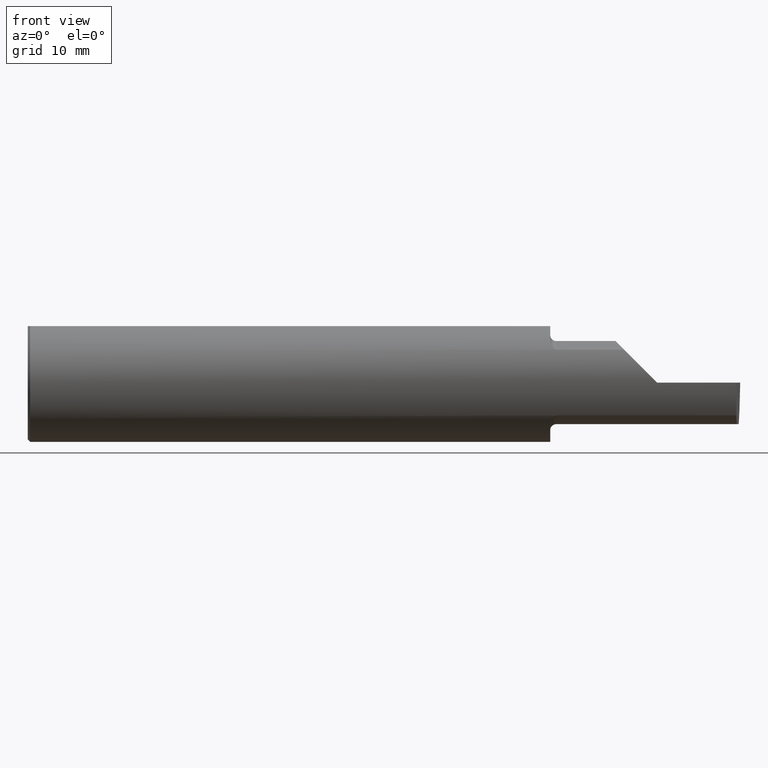
[diagram: clean part render]
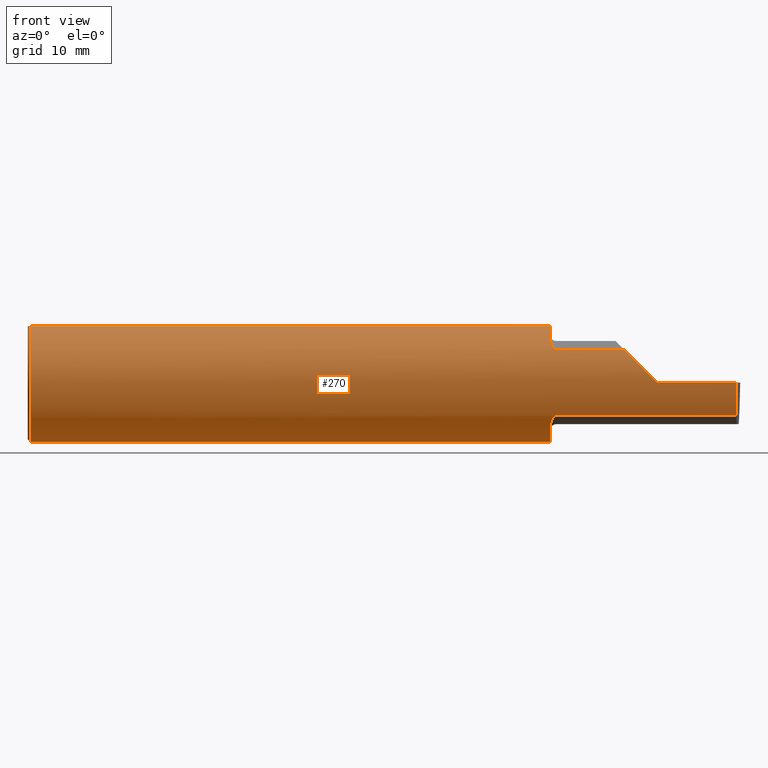
[diagram: same view with one face highlighted and labeled with its STEP entity id]
A machine part, front view. The second image highlights one B-rep face of the part: STEP entity #270.
In plain terms, the highlighted cylindrical surface (partial cylindrical patch) has radius 6.3462 mm, axis along (-1, -0, -0).
Its self-contained STEP definition (entity closure, byte-faithful):
#12 = DIRECTION ( 'NONE',  ( 1.000000000000000000, 0.000000000000000000, 0.000000000000000000 ) ) ;
#13 = DIRECTION ( 'NONE',  ( 1.000000000000000000, 0.000000000000000000, 0.000000000000000000 ) ) ;
#14 = VERTEX_POINT ( 'NONE', #514 ) ;
#16 = VECTOR ( 'NONE', #12, 39.37007874015748143 ) ;
#39 = FACE_OUTER_BOUND ( 'NONE', #306, .T. ) ;
#41 = CARTESIAN_POINT ( 'NONE',  ( 2.206159563508734767, -0.1933019864360846496, 0.1584298865564835734 ) ) ;
#57 = CARTESIAN_POINT ( 'NONE',  ( 2.202968662030528879, -0.1849684355203375652, 0.1680843977756270868 ) ) ;
#73 = ORIENTED_EDGE ( 'NONE', *, *, #721, .T. ) ;
#95 = CIRCLE ( 'NONE', #714, 0.2498499999999999888 ) ;
#101 = CARTESIAN_POINT ( 'NONE',  ( 2.984317093749864647, -0.2498499999999999888, 0.000000000000000000 ) ) ;
#109 = VERTEX_POINT ( 'NONE', #597 ) ;
#115 = CARTESIAN_POINT ( 'NONE',  ( 2.225000000000000089, -0.2080850024789287211, -0.1382955322609671911 ) ) ;
#118 = VERTEX_POINT ( 'NONE', #736 ) ;
#131 = VECTOR ( 'NONE', #478, 39.37007874015748143 ) ;
#156 = AXIS2_PLACEMENT_3D ( 'NONE', #753, #431, #238 ) ;
#167 = CARTESIAN_POINT ( 'NONE',  ( 2.552984868485331571, -0.2355204011147991605, 0.09701513151466779894 ) ) ;
#185 = CARTESIAN_POINT ( 'NONE',  ( 2.200000000000000178, -0.1616050818046601834, -0.1905487340154982112 ) ) ;
#186 = VERTEX_POINT ( 'NONE', #565 ) ;
#189 = CARTESIAN_POINT ( 'NONE',  ( 2.225000000000000089, -0.2080850024789287211, -0.1382955322609671911 ) ) ;
#191 = LINE ( 'NONE', #454, #16 ) ;
#198 = CARTESIAN_POINT ( 'NONE',  ( 2.217611663768900510, -0.2061921161193828456, -0.1411075319999381128 ) ) ;
#217 = CARTESIAN_POINT ( 'NONE',  ( 2.200000000000000178, -0.1616050818046601834, -0.1905487340154982112 ) ) ;
#218 = EDGE_CURVE ( 'NONE', #741, #518, #566, .T. ) ;
#222 = LINE ( 'NONE', #295, #131 ) ;
#223 = CARTESIAN_POINT ( 'NONE',  ( 2.984317093749864647, -0.2498499999999999888, 0.000000000000000000 ) ) ;
#227 =( BOUNDED_CURVE ( )  B_SPLINE_CURVE ( 3, ( #693, #234, #167, #698 ),
 .UNSPECIFIED., .F., .F. ) 
 B_SPLINE_CURVE_WITH_KNOTS ( ( 4, 4 ),
 ( 4.712388980384689674, 5.298966915116348986 ),
 .UNSPECIFIED. ) 
 CURVE ( )  GEOMETRIC_REPRESENTATION_ITEM ( )  RATIONAL_B_SPLINE_CURVE ( ( 1.000000000000000000, 0.9715321379117536349, 0.9715321379117536349, 1.000000000000000000 ) ) 
 REPRESENTATION_ITEM ( '' )  );
#229 = VECTOR ( 'NONE', #814, 39.37007874015748143 ) ;
#232 = CARTESIAN_POINT ( 'NONE',  ( 2.565421434999999750, -0.2080850024789288044, -0.1382955322609671633 ) ) ;
#234 = CARTESIAN_POINT ( 'NONE',  ( 2.600434159100402987, -0.2498499999999999610, 0.04956584089959713973 ) ) ;
#238 = DIRECTION ( 'NONE',  ( 0.000000000000000000, 0.000000000000000000, -1.000000000000000000 ) ) ;
#239 = EDGE_CURVE ( 'NONE', #497, #118, #254, .T. ) ;
#243 = CARTESIAN_POINT ( 'NONE',  ( 2.225000000000000089, -0.2080850024789288044, 0.1382955322609671356 ) ) ;
#245 = EDGE_CURVE ( 'NONE', #466, #316, #95, .T. ) ;
#254 = CIRCLE ( 'NONE', #318, 0.2498499999999999888 ) ;
#259 = DIRECTION ( 'NONE',  ( 0.000000000000000000, 0.000000000000000000, -1.000000000000000000 ) ) ;
#262 = CARTESIAN_POINT ( 'NONE',  ( 2.200000000000000178, -0.1716188362992553118, -0.1820560320165482693 ) ) ;
#263 = ORIENTED_EDGE ( 'NONE', *, *, #515, .F. ) ;
#270 = ADVANCED_FACE ( 'NONE', ( #39 ), #441, .T. ) ;
#295 = CARTESIAN_POINT ( 'NONE',  ( 0.000000000000000000, 0.07650098038587520299, 0.2378499999999998671 ) ) ;
#296 = DIRECTION ( 'NONE',  ( 0.000000000000000000, 0.000000000000000000, 1.000000000000000000 ) ) ;
#298 = LINE ( 'NONE', #232, #229 ) ;
#302 = CARTESIAN_POINT ( 'NONE',  ( 2.208182335268384477, -0.1972192205116128916, 0.1535061413537213149 ) ) ;
#306 = EDGE_LOOP ( 'NONE', ( #810, #410, #627, #73, #672, #700, #320, #749, #419, #816, #263, #501, #439 ) ) ;
#312 = LINE ( 'NONE', #437, #421 ) ;
#313 = CARTESIAN_POINT ( 'NONE',  ( 2.200000000000000178, 0.000000000000000000, 0.000000000000000000 ) ) ;
#316 = VERTEX_POINT ( 'NONE', #423 ) ;
#317 = CARTESIAN_POINT ( 'NONE',  ( 2.206147634408387681, -0.1932733126899457976, -0.1584637047788199637 ) ) ;
#318 = AXIS2_PLACEMENT_3D ( 'NONE', #313, #758, #351 ) ;
#320 = ORIENTED_EDGE ( 'NONE', *, *, #728, .F. ) ;
#322 = LINE ( 'NONE', #640, #338 ) ;
#338 = VECTOR ( 'NONE', #523, 39.37007874015748143 ) ;
#339 = CARTESIAN_POINT ( 'NONE',  ( 0.009999999999999856226, 0.000000000000000000, 0.000000000000000000 ) ) ;
#351 = DIRECTION ( 'NONE',  ( 0.000000000000000000, 0.000000000000000000, -1.000000000000000000 ) ) ;
#355 = CARTESIAN_POINT ( 'NONE',  ( 2.983451391416268805, -0.2498499999999999610, -0.04956584089959722994 ) ) ;
#357 = B_SPLINE_CURVE_WITH_KNOTS ( 'NONE', 3,
 ( #630, #371, #619, #495, #57, #41, #302, #503, #686, #703, #556, #493, #690, #243 ),
 .UNSPECIFIED., .F., .F.,
 ( 4, 2, 2, 2, 2, 2, 4 ),
 ( 0.0003834465838148119385, 0.0008781406165086550180, 0.001372834649202498043, 0.001867528681896341069, 0.002114875698243267026, 0.002238549206416738137, 0.002362222714590209247 ),
 .UNSPECIFIED. ) ;
#359 = B_SPLINE_CURVE_WITH_KNOTS ( 'NONE', 3,
 ( #189, #650, #524, #512, #198, #768, #719, #387, #317, #646, #262, #185 ),
 .UNSPECIFIED., .F., .F.,
 ( 4, 2, 2, 2, 2, 4 ),
 ( 1.964491429042083594E-07, 0.0001260981470478283659, 0.0002519998449527525520, 0.0005038032407626148561, 0.001007410032382339464, 0.002014623615621791933 ),
 .UNSPECIFIED. ) ;
#371 = CARTESIAN_POINT ( 'NONE',  ( 2.199999999999999734, -0.1665641037263007329, 0.1863429692936363902 ) ) ;
#372 = CARTESIAN_POINT ( 'NONE',  ( 2.983360130692194634, -0.2080850024789288044, -0.1382955322609671633 ) ) ;
#387 = CARTESIAN_POINT ( 'NONE',  ( 2.208176740666624838, -0.1972027065478071106, -0.1535263573771917245 ) ) ;
#394 = EDGE_CURVE ( 'NONE', #316, #446, #779, .T. ) ;
#410 = ORIENTED_EDGE ( 'NONE', *, *, #218, .T. ) ;
#419 = ORIENTED_EDGE ( 'NONE', *, *, #245, .T. ) ;
#421 = VECTOR ( 'NONE', #751, 39.37007874015748143 ) ;
#423 = CARTESIAN_POINT ( 'NONE',  ( 0.009999999999999856226, 0.000000000000000000, -0.2498499999999999888 ) ) ;
#431 = DIRECTION ( 'NONE',  ( 1.000000000000000000, 0.000000000000000000, 0.000000000000000000 ) ) ;
#437 = CARTESIAN_POINT ( 'NONE',  ( 2.565421434999999750, -0.2080850024789288044, 0.1382955322609671633 ) ) ;
#438 = DIRECTION ( 'NONE',  ( 1.000000000000000000, 0.000000000000000000, 0.000000000000000000 ) ) ;
#439 = ORIENTED_EDGE ( 'NONE', *, *, #452, .F. ) ;
#441 = CYLINDRICAL_SURFACE ( 'NONE', #445, 0.2498499999999999888 ) ;
#445 = AXIS2_PLACEMENT_3D ( 'NONE', #617, #612, #296 ) ;
#446 = VERTEX_POINT ( 'NONE', #724 ) ;
#452 = EDGE_CURVE ( 'NONE', #618, #497, #359, .T. ) ;
#454 = CARTESIAN_POINT ( 'NONE',  ( 0.000000000000000000, -0.07650098038587520299, 0.2378499999999998671 ) ) ;
#466 = VERTEX_POINT ( 'NONE', #546 ) ;
#478 = DIRECTION ( 'NONE',  ( -1.000000000000000000, -0.000000000000000000, -0.000000000000000000 ) ) ;
#493 = CARTESIAN_POINT ( 'NONE',  ( 2.221718393013768722, -0.2077830475237238406, 0.1387513848711941500 ) ) ;
#495 = CARTESIAN_POINT ( 'NONE',  ( 2.201849548162864600, -0.1805300287242671831, 0.1728462070311782839 ) ) ;
#497 = VERTEX_POINT ( 'NONE', #217 ) ;
#501 = ORIENTED_EDGE ( 'NONE', *, *, #239, .F. ) ;
#503 = CARTESIAN_POINT ( 'NONE',  ( 2.212616400345754908, -0.2024684335577099648, 0.1464246884265641424 ) ) ;
#512 = CARTESIAN_POINT ( 'NONE',  ( 2.218863362722770294, -0.2068301641248767031, -0.1401678546132364700 ) ) ;
#514 = CARTESIAN_POINT ( 'NONE',  ( 2.225000000000000089, -0.2080850024789288044, 0.1382955322609671356 ) ) ;
#515 = EDGE_CURVE ( 'NONE', #118, #446, #222, .T. ) ;
#518 = VERTEX_POINT ( 'NONE', #101 ) ;
#523 = DIRECTION ( 'NONE',  ( -1.000000000000000000, -0.000000000000000000, -0.000000000000000000 ) ) ;
#524 = CARTESIAN_POINT ( 'NONE',  ( 2.221700027347579098, -0.2077785947292765389, -0.1387580622202830016 ) ) ;
#542 = CARTESIAN_POINT ( 'NONE',  ( 2.511704467739031887, -0.2080850024789287211, 0.1382955322609671911 ) ) ;
#546 = CARTESIAN_POINT ( 'NONE',  ( 0.009999999999999856226, -0.07650098038587520299, 0.2378499999999998671 ) ) ;
#556 = CARTESIAN_POINT ( 'NONE',  ( 2.218876997637615034, -0.2068363917296597576, 0.1401586554522233630 ) ) ;
#565 = CARTESIAN_POINT ( 'NONE',  ( 2.650000000000000355, -0.2498499999999999610, 4.286263797015729199E-17 ) ) ;
#566 =( BOUNDED_CURVE ( )  B_SPLINE_CURVE ( 3, ( #372, #820, #355, #223 ),
 .UNSPECIFIED., .F., .T. ) 
 B_SPLINE_CURVE_WITH_KNOTS ( ( 4, 4 ),
 ( 6.160376845738969820, 6.746954780470629132 ),
 .UNSPECIFIED. ) 
 CURVE ( )  GEOMETRIC_REPRESENTATION_ITEM ( )  RATIONAL_B_SPLINE_CURVE ( ( 1.000000000000000000, 0.9715321379117536349, 0.9715321379117536349, 1.000000000000000000 ) ) 
 REPRESENTATION_ITEM ( '' )  );
#579 = VERTEX_POINT ( 'NONE', #542 ) ;
#585 = CARTESIAN_POINT ( 'NONE',  ( 2.983360130692194634, -0.2080850024789288044, -0.1382955322609671633 ) ) ;
#597 = CARTESIAN_POINT ( 'NONE',  ( 2.200000000000000178, -0.07650098038587527238, 0.2378499999999998671 ) ) ;
#612 = DIRECTION ( 'NONE',  ( -1.000000000000000000, -0.000000000000000000, -0.000000000000000000 ) ) ;
#617 = CARTESIAN_POINT ( 'NONE',  ( 0.000000000000000000, 0.000000000000000000, 0.000000000000000000 ) ) ;
#618 = VERTEX_POINT ( 'NONE', #115 ) ;
#619 = CARTESIAN_POINT ( 'NONE',  ( 2.200367168219773628, -0.1713400252854601069, 0.1819601557798507796 ) ) ;
#623 = CIRCLE ( 'NONE', #156, 0.2498499999999999888 ) ;
#627 = ORIENTED_EDGE ( 'NONE', *, *, #776, .T. ) ;
#628 = CARTESIAN_POINT ( 'NONE',  ( 0.009999999999999856226, 0.000000000000000000, 0.000000000000000000 ) ) ;
#630 = CARTESIAN_POINT ( 'NONE',  ( 2.200000000000000178, -0.1616050818046601834, 0.1905487340154982112 ) ) ;
#634 = DIRECTION ( 'NONE',  ( 0.000000000000000000, 0.000000000000000000, -1.000000000000000000 ) ) ;
#640 = CARTESIAN_POINT ( 'NONE',  ( 4.499279347985562423E-32, -0.2498499999999999610, 3.673940397442054938E-16 ) ) ;
#646 = CARTESIAN_POINT ( 'NONE',  ( 2.201385488563270432, -0.1808287530430323919, -0.1728790649396289569 ) ) ;
#650 = CARTESIAN_POINT ( 'NONE',  ( 2.223318040126429640, -0.2080850024789288044, -0.1382955322609671356 ) ) ;
#666 = EDGE_CURVE ( 'NONE', #741, #618, #298, .T. ) ;
#672 = ORIENTED_EDGE ( 'NONE', *, *, #702, .F. ) ;
#686 = CARTESIAN_POINT ( 'NONE',  ( 2.214343523383978773, -0.2041337200786080275, 0.1440846171672515164 ) ) ;
#690 = CARTESIAN_POINT ( 'NONE',  ( 2.223329956043143429, -0.2080850024798587827, 0.1382955322595680325 ) ) ;
#691 = EDGE_CURVE ( 'NONE', #759, #14, #357, .T. ) ;
#693 = CARTESIAN_POINT ( 'NONE',  ( 2.650000000000000355, -0.2498499999999999610, 4.286263797015729199E-17 ) ) ;
#698 = CARTESIAN_POINT ( 'NONE',  ( 2.511704467739031887, -0.2080850024789287211, 0.1382955322609671911 ) ) ;
#700 = ORIENTED_EDGE ( 'NONE', *, *, #691, .F. ) ;
#702 = EDGE_CURVE ( 'NONE', #14, #579, #312, .T. ) ;
#703 = CARTESIAN_POINT ( 'NONE',  ( 2.217647060162627692, -0.2062109266231179072, 0.1410799729252294188 ) ) ;
#714 = AXIS2_PLACEMENT_3D ( 'NONE', #628, #438, #634 ) ;
#719 = CARTESIAN_POINT ( 'NONE',  ( 2.212579853086618975, -0.2024300470081732972, -0.1464774911482688291 ) ) ;
#721 = EDGE_CURVE ( 'NONE', #186, #579, #227, .T. ) ;
#723 = CARTESIAN_POINT ( 'NONE',  ( 2.200000000000000178, -0.1616050818046601834, 0.1905487340154982112 ) ) ;
#724 = CARTESIAN_POINT ( 'NONE',  ( 0.009999999999999856226, 0.07650098038587520299, 0.2378499999999998671 ) ) ;
#728 = EDGE_CURVE ( 'NONE', #109, #759, #623, .T. ) ;
#736 = CARTESIAN_POINT ( 'NONE',  ( 2.200000000000000178, 0.07650098038587520299, 0.2378499999999998671 ) ) ;
#741 = VERTEX_POINT ( 'NONE', #585 ) ;
#749 = ORIENTED_EDGE ( 'NONE', *, *, #806, .F. ) ;
#751 = DIRECTION ( 'NONE',  ( 1.000000000000000000, 0.000000000000000000, 0.000000000000000000 ) ) ;
#753 = CARTESIAN_POINT ( 'NONE',  ( 2.200000000000000178, 0.000000000000000000, 0.000000000000000000 ) ) ;
#758 = DIRECTION ( 'NONE',  ( 1.000000000000000000, 0.000000000000000000, 0.000000000000000000 ) ) ;
#759 = VERTEX_POINT ( 'NONE', #723 ) ;
#768 = CARTESIAN_POINT ( 'NONE',  ( 2.214302603425051252, -0.2041009206016210498, -0.1441313430770042592 ) ) ;
#776 = EDGE_CURVE ( 'NONE', #518, #186, #322, .T. ) ;
#779 = CIRCLE ( 'NONE', #794, 0.2498499999999999888 ) ;
#794 = AXIS2_PLACEMENT_3D ( 'NONE', #339, #13, #259 ) ;
#806 = EDGE_CURVE ( 'NONE', #466, #109, #191, .T. ) ;
#810 = ORIENTED_EDGE ( 'NONE', *, *, #666, .F. ) ;
#814 = DIRECTION ( 'NONE',  ( -1.000000000000000000, -0.000000000000000000, -0.000000000000000000 ) ) ;
#816 = ORIENTED_EDGE ( 'NONE', *, *, #394, .T. ) ;
#820 = CARTESIAN_POINT ( 'NONE',  ( 2.983123056744215962, -0.2355204011147991328, -0.09701513151466793772 ) ) ;